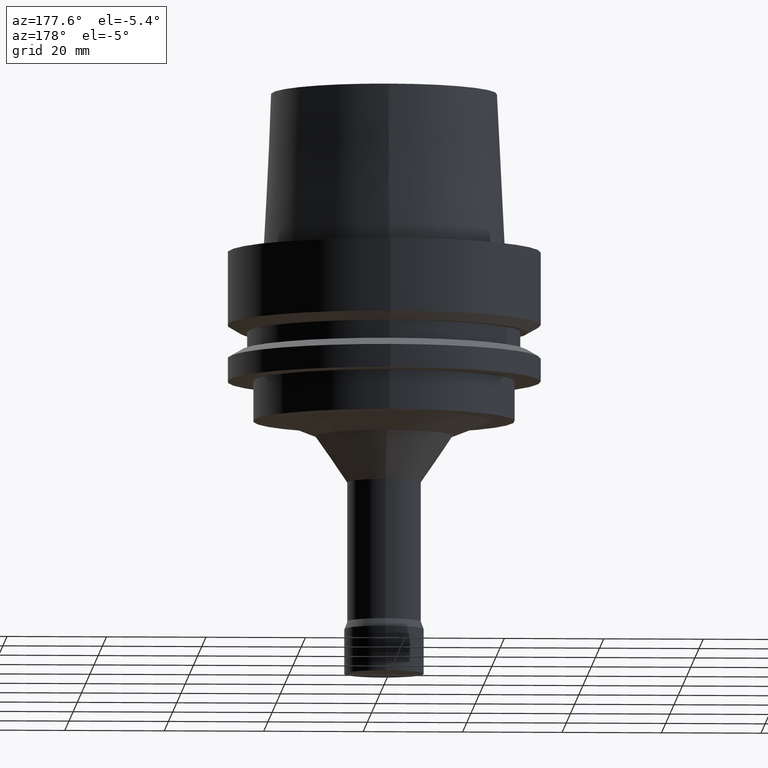
[diagram: clean part render]
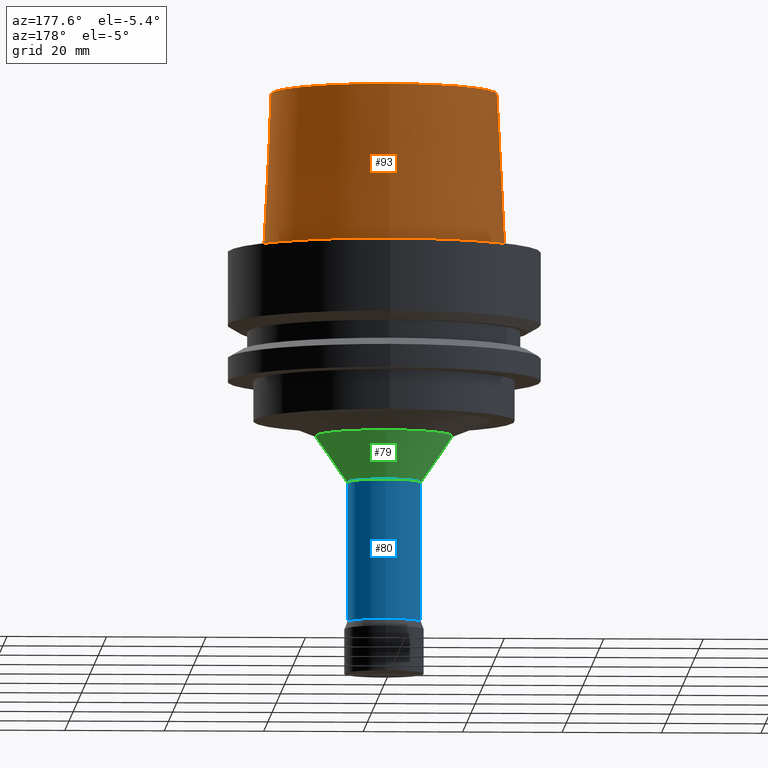
[diagram: same view with three faces highlighted in distinct colors, each labeled with its STEP entity id]
A machine part, auxiliary view with three faces highlighted in distinct colors.
Their STEP definitions:

[orange] entity #93 — the highlighted conical surface has half-angle 2.862 deg.
#93=ADVANCED_FACE('',(#147,#148),#149,.T.);
#147=FACE_BOUND('',#202,.T.);
#148=FACE_BOUND('',#203,.T.);
#149=CONICAL_SURFACE('',#204,23.5149999985447,0.0499583958256321);
#202=EDGE_LOOP('',(#293));
#203=EDGE_LOOP('',(#294));
#204=AXIS2_PLACEMENT_3D('',#295,#296,#297);
#293=ORIENTED_EDGE('',*,*,#309,.F.);
#294=ORIENTED_EDGE('',*,*,#315,.T.);
#295=CARTESIAN_POINT('',(-9.79717439317883E-016,-1.95943487863576E-015,16.0));
#296=DIRECTION('',(6.12323399573676E-017,1.22464679914735E-016,-1.0));
#297=DIRECTION('',(-1.23259516440783E-032,1.0,1.22464679914735E-016));
#309=EDGE_CURVE('',#338,#338,#339,.T.);
#315=EDGE_CURVE('',#350,#350,#351,.T.);
#338=VERTEX_POINT('',#374);
#339=CIRCLE('',#375,24.3150000002079);
#350=VERTEX_POINT('',#386);
#351=CIRCLE('',#387,22.7149999968815);
#374=CARTESIAN_POINT('',(-2.99705514228327E-031,24.3150000002079,2.97772869215225E-015));
#375=AXIS2_PLACEMENT_3D('',#421,#422,#423);
#386=CARTESIAN_POINT('',(-1.95943487863577E-015,22.7149999968815,32.0));
#387=AXIS2_PLACEMENT_3D('',#439,#440,#441);
#421=CARTESIAN_POINT('',(0.0,0.0,0.0));
#422=DIRECTION('',(6.12323399573677E-017,1.22464679914735E-016,-1.0));
#423=DIRECTION('',(-1.23259516440783E-032,1.0,1.22464679914735E-016));
#439=CARTESIAN_POINT('',(-1.95943487863577E-015,-3.91886975727153E-015,32.0));
#440=DIRECTION('',(6.12323399573677E-017,1.22464679914735E-016,-1.0));
#441=DIRECTION('',(-1.23259516440783E-032,1.0,1.22464679914735E-016));

[blue] entity #80 — the highlighted cylindrical surface (bore or boss wall) has radius 7.4 mm, axis along (-0, -0, 1).
#80=ADVANCED_FACE('',(#110,#111),#112,.T.);
#110=FACE_BOUND('',#165,.T.);
#111=FACE_BOUND('',#166,.T.);
#112=CYLINDRICAL_SURFACE('',#167,7.4);
#165=EDGE_LOOP('',(#230));
#166=EDGE_LOOP('',(#231));
#167=AXIS2_PLACEMENT_3D('',#232,#233,#234);
#230=ORIENTED_EDGE('',*,*,#304,.F.);
#231=ORIENTED_EDGE('',*,*,#303,.T.);
#232=CARTESIAN_POINT('',(3.69827251801209E-015,7.39654503602418E-015,-60.397373685));
#233=DIRECTION('',(-6.12323399573677E-017,-1.22464679914735E-016,1.0));
#234=DIRECTION('',(-1.23259516440783E-032,1.0,1.22464679914735E-016));
#303=EDGE_CURVE('',#326,#326,#327,.T.);
#304=EDGE_CURVE('',#328,#328,#329,.T.);
#326=VERTEX_POINT('',#362);
#327=CIRCLE('',#363,7.4);
#328=VERTEX_POINT('',#364);
#329=CIRCLE('',#365,7.4);
#362=CARTESIAN_POINT('',(2.83776643387033E-015,7.40000000000001,-46.34424286));
#363=AXIS2_PLACEMENT_3D('',#403,#404,#405);
#364=CARTESIAN_POINT('',(4.55877860215385E-015,7.40000000000001,-74.45050451));
#365=AXIS2_PLACEMENT_3D('',#406,#407,#408);
#403=CARTESIAN_POINT('',(2.83776643387033E-015,5.67553286774066E-015,-46.34424286));
#404=DIRECTION('',(6.12323399573677E-017,1.22464679914735E-016,-1.0));
#405=DIRECTION('',(-1.23259516440783E-032,1.0,1.22464679914735E-016));
#406=CARTESIAN_POINT('',(4.55877860215385E-015,9.11755720430771E-015,-74.45050451));
#407=DIRECTION('',(6.12323399573677E-017,1.22464679914735E-016,-1.0));
#408=DIRECTION('',(-1.23259516440783E-032,1.0,1.22464679914735E-016));

[green] entity #79 — the highlighted conical surface has half-angle 34.389 deg.
#79=ADVANCED_FACE('',(#107,#108),#109,.T.);
#107=FACE_BOUND('',#162,.T.);
#108=FACE_BOUND('',#163,.T.);
#109=CONICAL_SURFACE('',#164,10.590036275,0.600195797388469);
#162=EDGE_LOOP('',(#225));
#163=EDGE_LOOP('',(#226));
#164=AXIS2_PLACEMENT_3D('',#227,#228,#229);
#225=ORIENTED_EDGE('',*,*,#303,.F.);
#226=ORIENTED_EDGE('',*,*,#302,.T.);
#227=CARTESIAN_POINT('',(2.55236834134356E-015,5.10473668268713E-015,-41.6833383));
#228=DIRECTION('',(-6.12323399573677E-017,-1.22464679914735E-016,1.0));
#229=DIRECTION('',(-1.23259516440783E-032,1.0,1.22464679914735E-016));
#302=EDGE_CURVE('',#324,#324,#325,.T.);
#303=EDGE_CURVE('',#326,#326,#327,.T.);
#324=VERTEX_POINT('',#360);
#325=CIRCLE('',#361,13.78007255);
#326=VERTEX_POINT('',#362);
#327=CIRCLE('',#363,7.4);
#360=CARTESIAN_POINT('',(2.2669702488168E-015,13.78007255,-37.02243374));
#361=AXIS2_PLACEMENT_3D('',#400,#401,#402);
#362=CARTESIAN_POINT('',(2.83776643387033E-015,7.40000000000001,-46.34424286));
#363=AXIS2_PLACEMENT_3D('',#403,#404,#405);
#400=CARTESIAN_POINT('',(2.2669702488168E-015,4.5339404976336E-015,-37.02243374));
#401=DIRECTION('',(6.12323399573677E-017,1.22464679914735E-016,-1.0));
#402=DIRECTION('',(-1.23259516440783E-032,1.0,1.22464679914735E-016));
#403=CARTESIAN_POINT('',(2.83776643387033E-015,5.67553286774066E-015,-46.34424286));
#404=DIRECTION('',(6.12323399573677E-017,1.22464679914735E-016,-1.0));
#405=DIRECTION('',(-1.23259516440783E-032,1.0,1.22464679914735E-016));